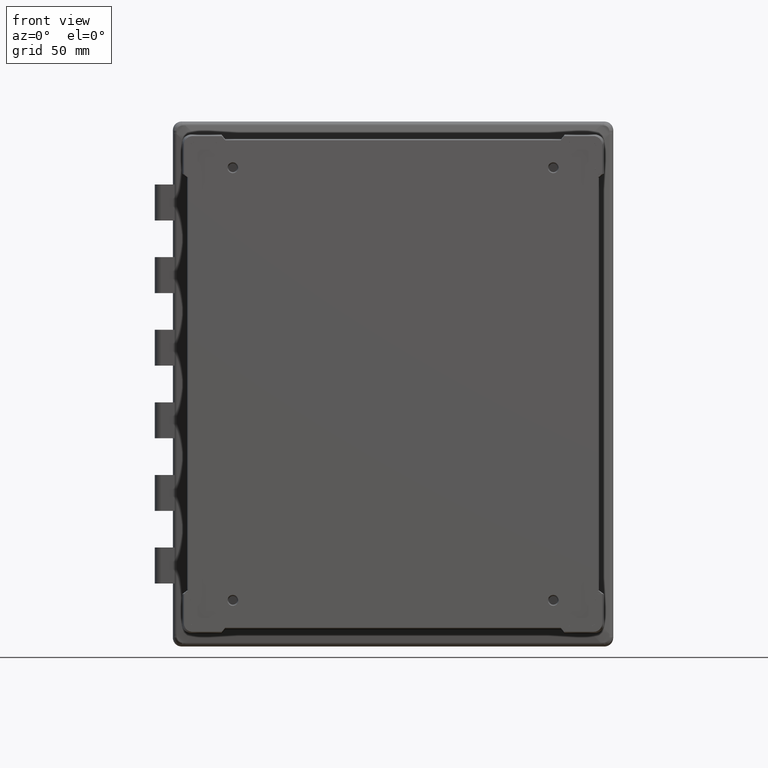
[diagram: clean part render]
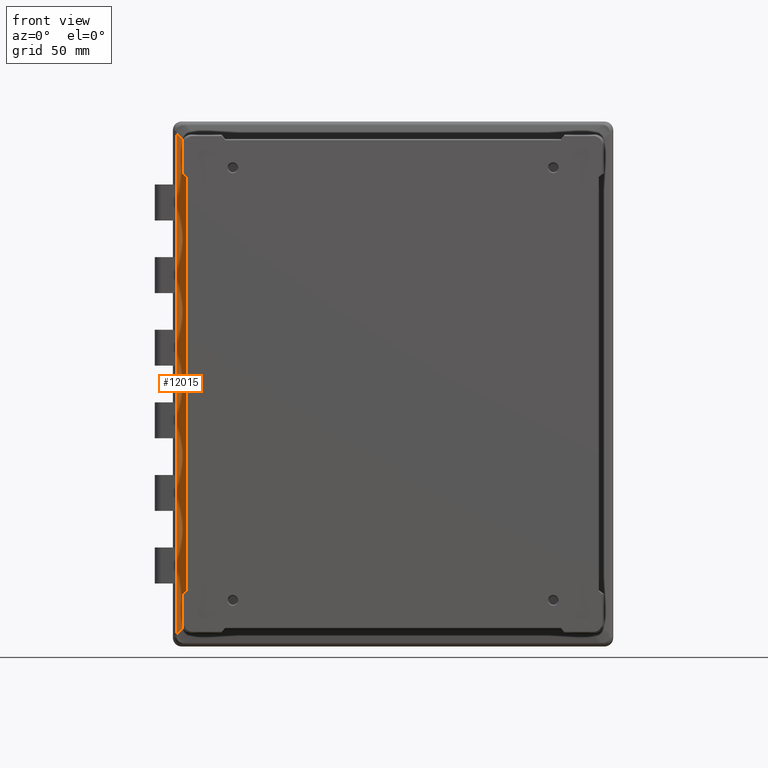
[diagram: same view with one face highlighted and labeled with its STEP entity id]
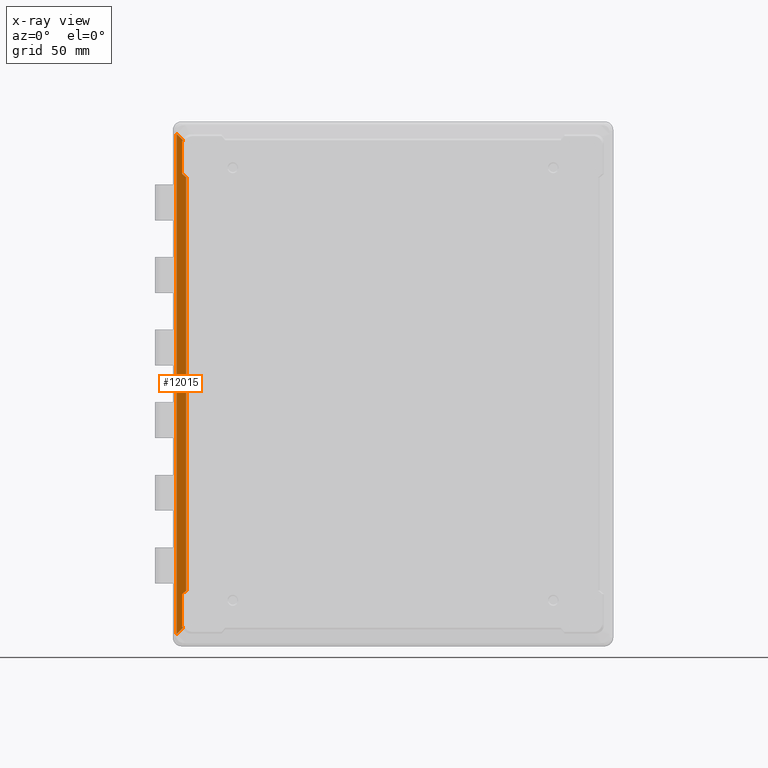
[diagram: x-ray of the same camera — body ghosted, the highlighted face saturated]
A machine part, front view. The second image highlights one B-rep face of the part: STEP entity #12015.
The next image is the same camera in x-ray: the body ghosted, the highlighted face saturated — about 0% of this face is hidden behind the body in this view.
In plain terms, the highlighted planar face has unit normal (-0.2079, -0.9781, 0).
Its self-contained STEP definition (entity closure, byte-faithful):
#1274 = CARTESIAN_POINT ( 'NONE',  ( -137.0640509998700600, -14.40609603904656100, 158.3543911931994900 ) ) ;
#1275 = DIRECTION ( 'NONE',  ( 0.0000000000000000000, 0.0000000000000000000, -1.000000000000000000 ) ) ;
#1276 = VECTOR ( 'NONE', #1275, 1000.000000000000000 ) ;
#1277 = CARTESIAN_POINT ( 'NONE',  ( -137.0640509998700600, -14.40609603904656100, 165.7745826525084300 ) ) ;
#1278 = LINE ( 'NONE', #1277, #1276 ) ;
#1279 = CARTESIAN_POINT ( 'NONE',  ( -137.0640509998700900, -14.40609603904655100, -158.3543911931995800 ) ) ;
#3034 = LINE ( 'NONE', #3082, #3081 ) ;
#3064 = DIRECTION ( 'NONE',  ( -0.7587771872867544700, 0.1612830700033206800, -0.6310665189847306500 ) ) ;
#3065 = VECTOR ( 'NONE', #3064, 1000.000000000000200 ) ;
#3066 = CARTESIAN_POINT ( 'NONE',  ( -134.5083863555562700, -14.94931932862353500, -133.8646068193521900 ) ) ;
#3067 = LINE ( 'NONE', #3066, #3065 ) ;
#3068 = CARTESIAN_POINT ( 'NONE',  ( -133.6011417467239300, -15.14216012327063500, -133.1100616027112800 ) ) ;
#3069 = DIRECTION ( 'NONE',  ( 1.112286263379342100E-015, -2.364237437367062800E-016, 1.000000000000000000 ) ) ;
#3070 = VECTOR ( 'NONE', #3069, 1000.000000000000000 ) ;
#3071 = CARTESIAN_POINT ( 'NONE',  ( -133.6011417467239300, -15.14216012327059400, -166.2634734253926200 ) ) ;
#3072 = CARTESIAN_POINT ( 'NONE',  ( -133.6011417467239300, -15.14216012327059600, -152.6013511698707800 ) ) ;
#3073 = CARTESIAN_POINT ( 'NONE',  ( -133.6011417467239500, -15.14216012327059200, -153.2649642378832800 ) ) ;
#3074 = CARTESIAN_POINT ( 'NONE',  ( -133.4821148381278700, -15.16746007370798400, -153.9176259772866900 ) ) ;
#3075 = CARTESIAN_POINT ( 'NONE',  ( -133.2479070755100600, -15.21724247044645200, -154.5382472688394800 ) ) ;
#3076 =( BOUNDED_CURVE ( )  B_SPLINE_CURVE ( 3, ( #3075, #3074, #3073, #3072 ),
 .UNSPECIFIED., .F., .T. ) 
 B_SPLINE_CURVE_WITH_KNOTS ( ( 4, 4 ),
 ( 5.962527109710586100, 6.322526357496627700 ),
 .UNSPECIFIED. ) 
 CURVE ( )  GEOMETRIC_REPRESENTATION_ITEM ( )  RATIONAL_B_SPLINE_CURVE ( ( 1.000000000000000000, 0.9892291734148825900, 0.9892291734148825900, 1.000000000000000000 ) ) 
 REPRESENTATION_ITEM ( '' )  );
#3077 = LINE ( 'NONE', #3071, #3070 ) ;
#3078 = CARTESIAN_POINT ( 'NONE',  ( -133.6011417467239300, -15.14216012327059600, -152.6013511698707800 ) ) ;
#3079 = CARTESIAN_POINT ( 'NONE',  ( -133.2479070755100600, -15.21724247044645200, -154.5382472688394800 ) ) ;
#3080 = DIRECTION ( 'NONE',  ( 0.6992527780868756900, -0.1486307662483552500, 0.6992527780868755800 ) ) ;
#3081 = VECTOR ( 'NONE', #3080, 1000.000000000000100 ) ;
#3082 = CARTESIAN_POINT ( 'NONE',  ( 20.44388367449667500, -47.88544106917594700, -0.8464565188328332400 ) ) ;
#3083 = CARTESIAN_POINT ( 'NONE',  ( -133.2479070755100600, -15.21724247044645800, 154.5382472688394800 ) ) ;
#3084 = CARTESIAN_POINT ( 'NONE',  ( -133.4821148381278700, -15.16746007370799300, 153.9176259772866900 ) ) ;
#3085 = CARTESIAN_POINT ( 'NONE',  ( -133.6011417467239300, -15.14216012327060300, 153.2649642378832800 ) ) ;
#3086 = CARTESIAN_POINT ( 'NONE',  ( -133.6011417467239300, -15.14216012327060100, 152.6013511698707800 ) ) ;
#3087 = CARTESIAN_POINT ( 'NONE',  ( -133.2479070755100600, -15.21724247044645800, 154.5382472688394800 ) ) ;
#3088 =( BOUNDED_CURVE ( )  B_SPLINE_CURVE ( 3, ( #3086, #3085, #3084, #3083 ),
 .UNSPECIFIED., .F., .T. ) 
 B_SPLINE_CURVE_WITH_KNOTS ( ( 4, 4 ),
 ( 6.243844256862529600, 6.603843504648568600 ),
 .UNSPECIFIED. ) 
 CURVE ( )  GEOMETRIC_REPRESENTATION_ITEM ( )  RATIONAL_B_SPLINE_CURVE ( ( 1.000000000000000000, 0.9892291734148825900, 0.9892291734148825900, 1.000000000000000000 ) ) 
 REPRESENTATION_ITEM ( '' )  );
#3089 = LINE ( 'NONE', #3122, #3121 ) ;
#3090 = CARTESIAN_POINT ( 'NONE',  ( -133.6011417467239300, -15.14216012327060100, 152.6013511698707800 ) ) ;
#3091 = DIRECTION ( 'NONE',  ( -1.112286263379342100E-015, 2.364237437367062800E-016, 1.000000000000000000 ) ) ;
#3092 = VECTOR ( 'NONE', #3091, 1000.000000000000000 ) ;
#3093 = CARTESIAN_POINT ( 'NONE',  ( -133.6011417467235600, -15.14216012327067600, -166.2634734253932200 ) ) ;
#3094 = LINE ( 'NONE', #3093, #3092 ) ;
#3095 = CARTESIAN_POINT ( 'NONE',  ( -133.6011417467239000, -15.14216012327059100, 133.1100616027112300 ) ) ;
#3096 = DIRECTION ( 'NONE',  ( 0.7587771872867576900, -0.1612830700033213700, -0.6310665189847267700 ) ) ;
#3097 = VECTOR ( 'NONE', #3096, 1000.000000000000000 ) ;
#3098 = CARTESIAN_POINT ( 'NONE',  ( -128.7959172958406400, -16.16354211060305700, 129.1136100514955800 ) ) ;
#3099 = LINE ( 'NONE', #3098, #3097 ) ;
#3100 = DIRECTION ( 'NONE',  ( 0.9781476007338061300, -0.2079116908177565700, 0.0000000000000000000 ) ) ;
#3101 = DIRECTION ( 'NONE',  ( -0.2079116908177565900, -0.9781476007338062400, 0.0000000000000000000 ) ) ;
#3102 = CARTESIAN_POINT ( 'NONE',  ( -138.9745826525084700, -14.00000000000000200, 165.7745826525084300 ) ) ;
#3103 = AXIS2_PLACEMENT_3D ( 'NONE', #3102, #3101, #3100 ) ;
#3104 = PLANE ( 'NONE',  #3103 ) ;
#3105 = FACE_OUTER_BOUND ( 'NONE', #11953, .T. ) ;
#3120 = DIRECTION ( 'NONE',  ( -0.6992527780868756900, 0.1486307662483552500, 0.6992527780868755800 ) ) ;
#3121 = VECTOR ( 'NONE', #3120, 1000.000000000000100 ) ;
#3122 = CARTESIAN_POINT ( 'NONE',  ( -141.6685553200857700, -13.42737843254676400, 162.9588955134152000 ) ) ;
#9635 = VERTEX_POINT ( 'NONE', #17061 ) ;
#9637 = EDGE_CURVE ( 'NONE', #9635, #9638, #17046, .T. ) ;
#9638 = VERTEX_POINT ( 'NONE', #17042 ) ;
#11021 = VERTEX_POINT ( 'NONE', #1279 ) ;
#11023 = EDGE_CURVE ( 'NONE', #11024, #11021, #1278, .T. ) ;
#11024 = VERTEX_POINT ( 'NONE', #1274 ) ;
#11953 = EDGE_LOOP ( 'NONE', ( #12016, #12017, #12020, #12023, #12026, #12001, #12002, #12005, #12008, #12011 ) ) ;
#12001 = ORIENTED_EDGE ( 'NONE', *, *, #11023, .T. ) ;
#12002 = ORIENTED_EDGE ( 'NONE', *, *, #12003, .T. ) ;
#12003 = EDGE_CURVE ( 'NONE', #11021, #12004, #3034, .T. ) ;
#12004 = VERTEX_POINT ( 'NONE', #3079 ) ;
#12005 = ORIENTED_EDGE ( 'NONE', *, *, #12006, .T. ) ;
#12006 = EDGE_CURVE ( 'NONE', #12004, #12007, #3076, .T. ) ;
#12007 = VERTEX_POINT ( 'NONE', #3078 ) ;
#12008 = ORIENTED_EDGE ( 'NONE', *, *, #12009, .T. ) ;
#12009 = EDGE_CURVE ( 'NONE', #12007, #12010, #3077, .T. ) ;
#12010 = VERTEX_POINT ( 'NONE', #3068 ) ;
#12011 = ORIENTED_EDGE ( 'NONE', *, *, #12012, .F. ) ;
#12012 = EDGE_CURVE ( 'NONE', #9638, #12010, #3067, .T. ) ;
#12015 = ADVANCED_FACE ( 'NONE', ( #3105 ), #3104, .T. ) ;
#12016 = ORIENTED_EDGE ( 'NONE', *, *, #9637, .F. ) ;
#12017 = ORIENTED_EDGE ( 'NONE', *, *, #12018, .F. ) ;
#12018 = EDGE_CURVE ( 'NONE', #12019, #9635, #3099, .T. ) ;
#12019 = VERTEX_POINT ( 'NONE', #3095 ) ;
#12020 = ORIENTED_EDGE ( 'NONE', *, *, #12021, .T. ) ;
#12021 = EDGE_CURVE ( 'NONE', #12019, #12022, #3094, .T. ) ;
#12022 = VERTEX_POINT ( 'NONE', #3090 ) ;
#12023 = ORIENTED_EDGE ( 'NONE', *, *, #12024, .T. ) ;
#12024 = EDGE_CURVE ( 'NONE', #12022, #12025, #3088, .T. ) ;
#12025 = VERTEX_POINT ( 'NONE', #3087 ) ;
#12026 = ORIENTED_EDGE ( 'NONE', *, *, #12027, .T. ) ;
#12027 = EDGE_CURVE ( 'NONE', #12025, #11024, #3089, .T. ) ;
#17042 = CARTESIAN_POINT ( 'NONE',  ( -130.9515572080079300, -15.70534670267411500, -130.9064317102756500 ) ) ;
#17043 = DIRECTION ( 'NONE',  ( -8.962543548058904900E-017, 1.905047440393214900E-017, -1.000000000000000000 ) ) ;
#17044 = VECTOR ( 'NONE', #17043, 1000.000000000000000 ) ;
#17045 = CARTESIAN_POINT ( 'NONE',  ( -130.9515572080079600, -15.70534670267410400, -156.0000000000000000 ) ) ;
#17046 = LINE ( 'NONE', #17045, #17044 ) ;
#17061 = CARTESIAN_POINT ( 'NONE',  ( -130.9515572080079300, -15.70534670267411500, 130.9064317102756500 ) ) ;